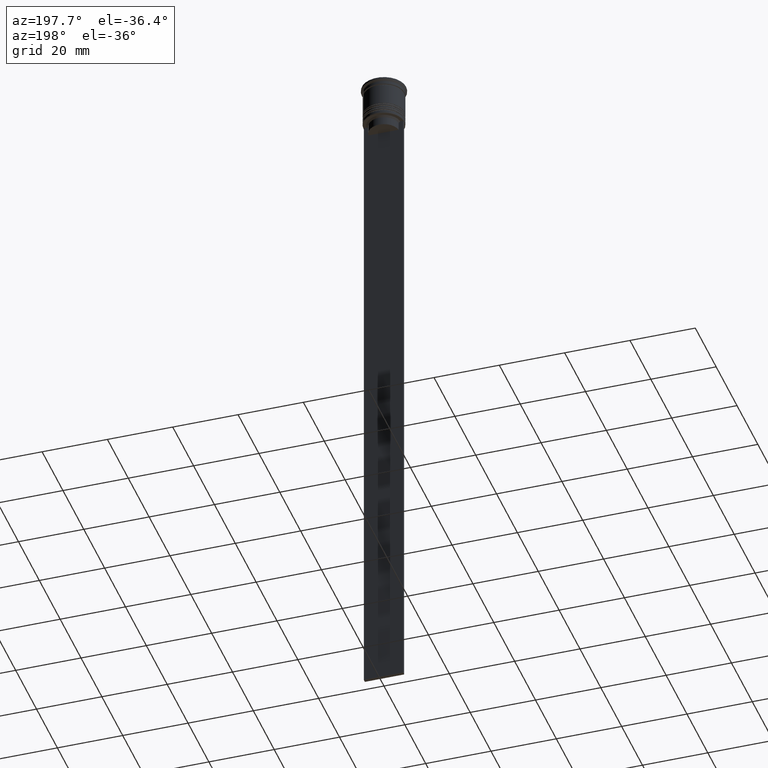
[diagram: clean part render]
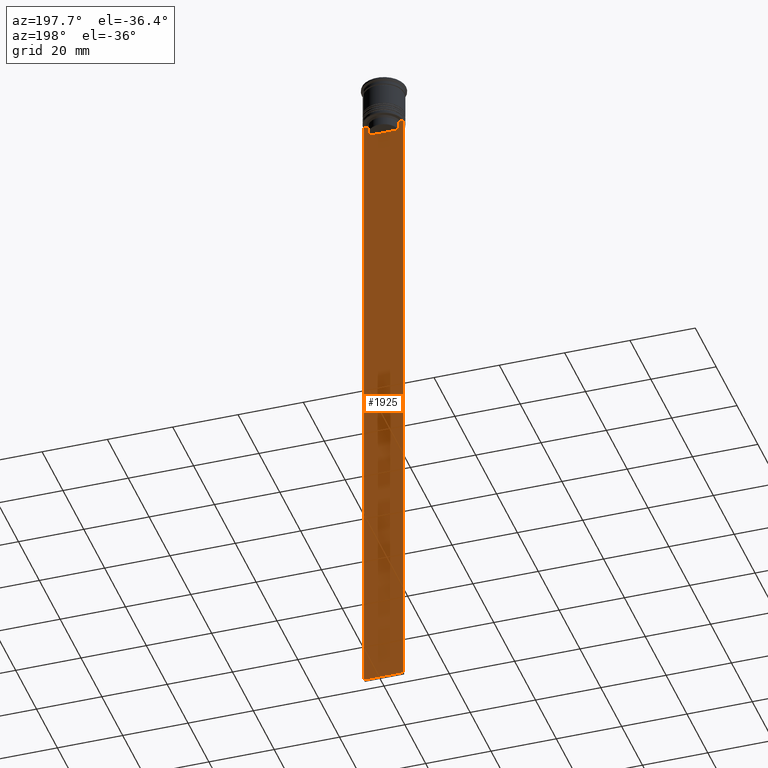
[diagram: same view with one face highlighted and labeled with its STEP entity id]
A machine part, auxiliary view. The second image highlights one B-rep face of the part: STEP entity #1925.
In plain terms, the highlighted planar face has unit normal (0, -1, -0).
Its self-contained STEP definition (entity closure, byte-faithful):
#58 = B_SPLINE_CURVE_WITH_KNOTS ( 'NONE', 3,
 ( #1233, #646, #1584, #1382 ),
 .UNSPECIFIED., .F., .F.,
 ( 4, 4 ),
 ( 0.008759809102772707357, 0.009468778395565351919 ),
 .UNSPECIFIED. ) ;
#65 = DIRECTION ( 'NONE',  ( -1.000000000000000000, 0.000000000000000000, 0.000000000000000000 ) ) ;
#87 = CARTESIAN_POINT ( 'NONE',  ( 4.790630799407576745, 0.4999999999999982792, -12.83338098686239093 ) ) ;
#138 = DIRECTION ( 'NONE',  ( 1.000000000000000000, 0.000000000000000000, 0.000000000000000000 ) ) ;
#166 = ORIENTED_EDGE ( 'NONE', *, *, #2264, .T. ) ;
#191 = VERTEX_POINT ( 'NONE', #603 ) ;
#193 = VERTEX_POINT ( 'NONE', #1128 ) ;
#216 = CARTESIAN_POINT ( 'NONE',  ( -4.623040125285526436, 0.4999999999999982792, -13.00000000000000178 ) ) ;
#229 = DIRECTION ( 'NONE',  ( 0.000000000000000000, 0.000000000000000000, -1.000000000000000000 ) ) ;
#233 = CARTESIAN_POINT ( 'NONE',  ( 6.000000000000016875, 0.4999999999999982792, -212.5000000000000284 ) ) ;
#262 = CARTESIAN_POINT ( 'NONE',  ( 4.623040125285526436, 0.4999999999999982792, 0.000000000000000000 ) ) ;
#263 = ORIENTED_EDGE ( 'NONE', *, *, #819, .T. ) ;
#283 = B_SPLINE_CURVE_WITH_KNOTS ( 'NONE', 3,
 ( #1712, #87, #809, #2256 ),
 .UNSPECIFIED., .F., .F.,
 ( 4, 4 ),
 ( 0.02203698174624552433, 0.02275222543365896036 ),
 .UNSPECIFIED. ) ;
#307 = VERTEX_POINT ( 'NONE', #1216 ) ;
#320 = VECTOR ( 'NONE', #65, 1000.000000000000000 ) ;
#351 = CARTESIAN_POINT ( 'NONE',  ( 5.125670687822231564, 0.4999999999999982792, -12.50000000000000000 ) ) ;
#356 = CARTESIAN_POINT ( 'NONE',  ( 6.000000000000016875, 0.4999999999999982792, -12.50000000000000000 ) ) ;
#416 = PLANE ( 'NONE',  #1936 ) ;
#450 = EDGE_CURVE ( 'NONE', #753, #193, #1254, .T. ) ;
#455 = CARTESIAN_POINT ( 'NONE',  ( 6.000000000000016875, 0.4999999999999982792, -12.50000000000000000 ) ) ;
#467 = CARTESIAN_POINT ( 'NONE',  ( -4.623040125285526436, 0.4999999999999982792, 0.000000000000000000 ) ) ;
#504 = ORIENTED_EDGE ( 'NONE', *, *, #709, .T. ) ;
#594 = DIRECTION ( 'NONE',  ( 0.000000000000000000, 0.000000000000000000, -1.000000000000000000 ) ) ;
#599 = DIRECTION ( 'NONE',  ( -0.000000000000000000, -0.000000000000000000, 1.000000000000000000 ) ) ;
#603 = CARTESIAN_POINT ( 'NONE',  ( 6.000000000000016875, 0.4999999999999982792, -212.5000000000000284 ) ) ;
#646 = CARTESIAN_POINT ( 'NONE',  ( -4.958169823806762189, 0.4999999999999982792, -12.66670956677067750 ) ) ;
#666 = CARTESIAN_POINT ( 'NONE',  ( 0.000000000000000000, 0.4999999999999987232, -15.50000000000000000 ) ) ;
#678 = CARTESIAN_POINT ( 'NONE',  ( 6.000000000000016875, 0.4999999999999982792, -12.50000000000000000 ) ) ;
#709 = EDGE_CURVE ( 'NONE', #1668, #1637, #2315, .T. ) ;
#730 = CARTESIAN_POINT ( 'NONE',  ( -4.623040125285526436, 0.4999999999999987232, -15.50000000000000000 ) ) ;
#740 = VERTEX_POINT ( 'NONE', #455 ) ;
#753 = VERTEX_POINT ( 'NONE', #1948 ) ;
#756 = ORIENTED_EDGE ( 'NONE', *, *, #1614, .T. ) ;
#806 = VERTEX_POINT ( 'NONE', #351 ) ;
#809 = CARTESIAN_POINT ( 'NONE',  ( 4.958169719475987058, 0.4999999999999982792, -12.66670967060858111 ) ) ;
#819 = EDGE_CURVE ( 'NONE', #740, #191, #1598, .T. ) ;
#920 = VECTOR ( 'NONE', #1399, 1000.000000000000000 ) ;
#949 = CARTESIAN_POINT ( 'NONE',  ( 4.623040125285526436, 0.4999999999999982792, -13.00000000000000178 ) ) ;
#960 = ORIENTED_EDGE ( 'NONE', *, *, #1171, .T. ) ;
#964 = CARTESIAN_POINT ( 'NONE',  ( -5.999999999999983125, 0.4999999999999982792, -0.4584054212077061097 ) ) ;
#968 = LINE ( 'NONE', #262, #1972 ) ;
#1044 = EDGE_CURVE ( 'NONE', #191, #307, #2074, .T. ) ;
#1070 = DIRECTION ( 'NONE',  ( 0.000000000000000000, 0.000000000000000000, -1.000000000000000000 ) ) ;
#1086 = ORIENTED_EDGE ( 'NONE', *, *, #1044, .T. ) ;
#1128 = CARTESIAN_POINT ( 'NONE',  ( -5.125670687822231564, 0.4999999999999982792, -12.50000000000000000 ) ) ;
#1152 = VECTOR ( 'NONE', #138, 1000.000000000000000 ) ;
#1163 = DIRECTION ( 'NONE',  ( 0.000000000000000000, -1.000000000000000000, -0.000000000000000000 ) ) ;
#1171 = EDGE_CURVE ( 'NONE', #1885, #806, #283, .T. ) ;
#1216 = CARTESIAN_POINT ( 'NONE',  ( -5.999999999999983125, 0.4999999999999982792, -212.5000000000000284 ) ) ;
#1218 = VECTOR ( 'NONE', #2337, 1000.000000000000000 ) ;
#1222 = EDGE_CURVE ( 'NONE', #2265, #1668, #2269, .T. ) ;
#1233 = CARTESIAN_POINT ( 'NONE',  ( -5.125670687822231564, 0.4999999999999982792, -12.50000000000000000 ) ) ;
#1240 = CARTESIAN_POINT ( 'NONE',  ( 6.000000000000016875, 0.4999999999999982792, -0.4584054212077061097 ) ) ;
#1254 = LINE ( 'NONE', #356, #1218 ) ;
#1287 = ORIENTED_EDGE ( 'NONE', *, *, #450, .T. ) ;
#1382 = CARTESIAN_POINT ( 'NONE',  ( -4.623040125285526436, 0.4999999999999982792, -13.00000000000000178 ) ) ;
#1399 = DIRECTION ( 'NONE',  ( 1.000000000000000000, 0.000000000000000000, 0.000000000000000000 ) ) ;
#1404 = ORIENTED_EDGE ( 'NONE', *, *, #1222, .T. ) ;
#1470 = EDGE_CURVE ( 'NONE', #753, #307, #2266, .T. ) ;
#1584 = CARTESIAN_POINT ( 'NONE',  ( -4.790630915080666519, 0.4999999999999982792, -12.83338087185995313 ) ) ;
#1590 = LINE ( 'NONE', #678, #1152 ) ;
#1598 = LINE ( 'NONE', #1240, #1640 ) ;
#1614 = EDGE_CURVE ( 'NONE', #193, #2265, #58, .T. ) ;
#1615 = VECTOR ( 'NONE', #594, 1000.000000000000000 ) ;
#1637 = VERTEX_POINT ( 'NONE', #1943 ) ;
#1640 = VECTOR ( 'NONE', #1070, 1000.000000000000000 ) ;
#1668 = VERTEX_POINT ( 'NONE', #730 ) ;
#1712 = CARTESIAN_POINT ( 'NONE',  ( 4.623040125285526436, 0.4999999999999982792, -13.00000000000000178 ) ) ;
#1863 = ORIENTED_EDGE ( 'NONE', *, *, #1470, .F. ) ;
#1866 = FACE_OUTER_BOUND ( 'NONE', #2218, .T. ) ;
#1881 = VECTOR ( 'NONE', #2094, 1000.000000000000000 ) ;
#1885 = VERTEX_POINT ( 'NONE', #949 ) ;
#1925 = ADVANCED_FACE ( 'NONE', ( #1866 ), #416, .F. ) ;
#1936 = AXIS2_PLACEMENT_3D ( 'NONE', #2088, #1163, #229 ) ;
#1943 = CARTESIAN_POINT ( 'NONE',  ( 4.623040125285526436, 0.4999999999999987232, -15.50000000000000000 ) ) ;
#1948 = CARTESIAN_POINT ( 'NONE',  ( -5.999999999999983125, 0.4999999999999985012, -12.50000000000000000 ) ) ;
#1972 = VECTOR ( 'NONE', #599, 1000.000000000000000 ) ;
#2015 = EDGE_CURVE ( 'NONE', #806, #740, #1590, .T. ) ;
#2019 = ORIENTED_EDGE ( 'NONE', *, *, #2015, .T. ) ;
#2074 = LINE ( 'NONE', #233, #320 ) ;
#2088 = CARTESIAN_POINT ( 'NONE',  ( 6.000000000000016875, 0.4999999999999982792, -0.4584054212077061097 ) ) ;
#2094 = DIRECTION ( 'NONE',  ( 0.000000000000000000, 0.000000000000000000, -1.000000000000000000 ) ) ;
#2218 = EDGE_LOOP ( 'NONE', ( #1287, #756, #1404, #504, #166, #960, #2019, #263, #1086, #1863 ) ) ;
#2256 = CARTESIAN_POINT ( 'NONE',  ( 5.125670687822231564, 0.4999999999999982792, -12.50000000000000000 ) ) ;
#2264 = EDGE_CURVE ( 'NONE', #1637, #1885, #968, .T. ) ;
#2265 = VERTEX_POINT ( 'NONE', #216 ) ;
#2266 = LINE ( 'NONE', #964, #1615 ) ;
#2269 = LINE ( 'NONE', #467, #1881 ) ;
#2315 = LINE ( 'NONE', #666, #920 ) ;
#2337 = DIRECTION ( 'NONE',  ( 1.000000000000000000, 0.000000000000000000, 0.000000000000000000 ) ) ;